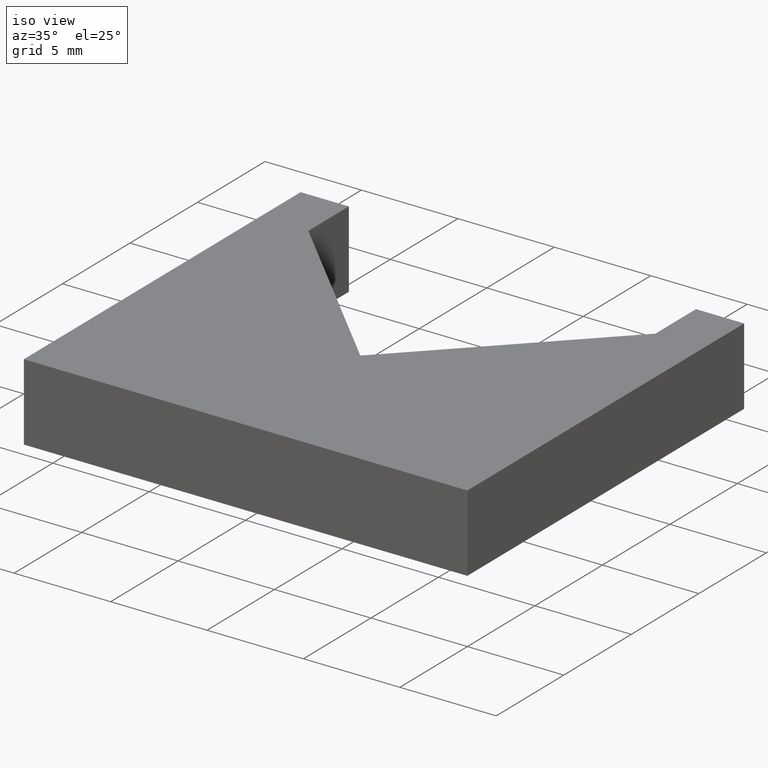
[diagram: clean part render]
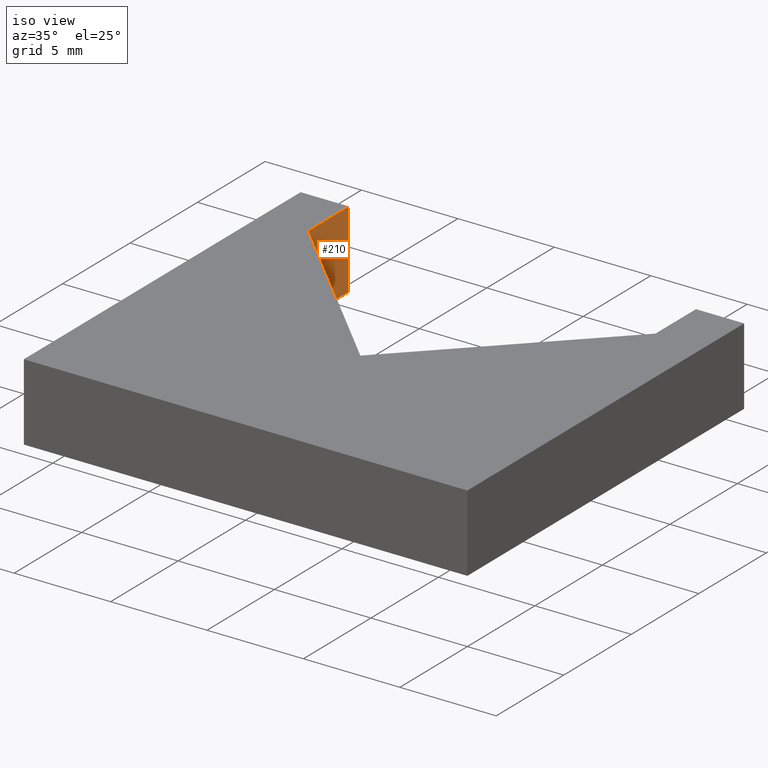
[diagram: same view with one face highlighted and labeled with its STEP entity id]
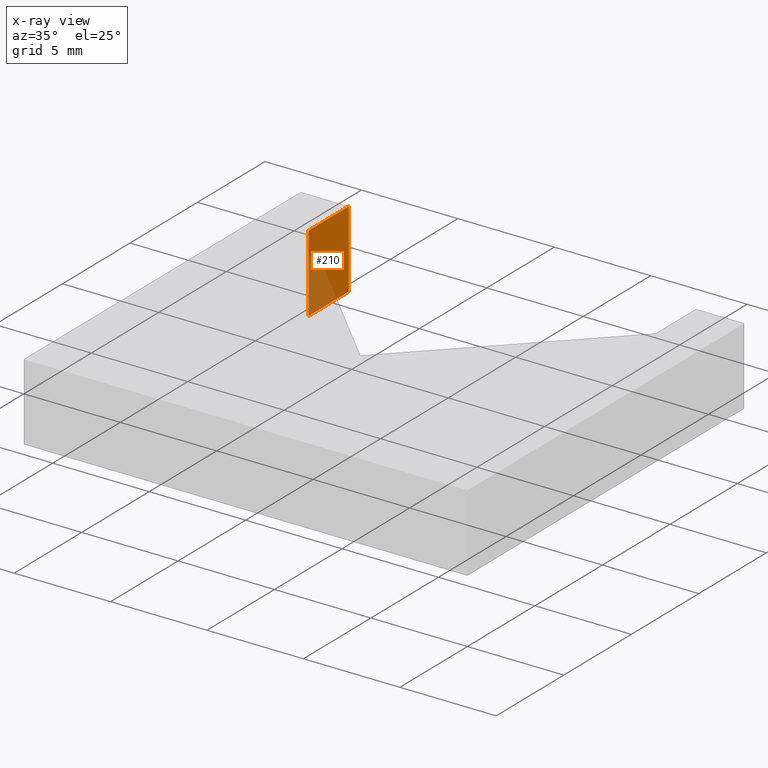
[diagram: x-ray of the same camera — body ghosted, the highlighted face saturated]
A machine part, iso view. The second image highlights one B-rep face of the part: STEP entity #210.
The next image is the same camera in x-ray: the body ghosted, the highlighted face saturated — about 32% of this face is hidden behind the body in this view.
In plain terms, the highlighted planar face has unit normal (1, 0, 0).
Its self-contained STEP definition (entity closure, byte-faithful):
#24=FACE_OUTER_BOUND('',#35,.T.);
#35=EDGE_LOOP('',(#174,#175,#176,#177));
#38=LINE('',#302,#65);
#61=LINE('',#347,#88);
#62=LINE('',#350,#89);
#63=LINE('',#351,#90);
#65=VECTOR('',#251,10.);
#88=VECTOR('',#288,10.);
#89=VECTOR('',#291,10.);
#90=VECTOR('',#292,10.);
#92=VERTEX_POINT('',#300);
#93=VERTEX_POINT('',#301);
#108=VERTEX_POINT('',#345);
#109=VERTEX_POINT('',#349);
#110=EDGE_CURVE('',#92,#93,#38,.T.);
#133=EDGE_CURVE('',#93,#108,#61,.T.);
#134=EDGE_CURVE('',#108,#109,#62,.T.);
#135=EDGE_CURVE('',#92,#109,#63,.T.);
#174=ORIENTED_EDGE('',*,*,#134,.T.);
#175=ORIENTED_EDGE('',*,*,#135,.F.);
#176=ORIENTED_EDGE('',*,*,#110,.T.);
#177=ORIENTED_EDGE('',*,*,#133,.T.);
#199=PLANE('',#244);
#210=ADVANCED_FACE('',(#24),#199,.T.);
#244=AXIS2_PLACEMENT_3D('',#348,#289,#290);
#251=DIRECTION('',(0.,1.,0.));
#288=DIRECTION('',(0.,0.,1.));
#289=DIRECTION('center_axis',(1.,0.,0.));
#290=DIRECTION('ref_axis',(0.,0.,-1.));
#291=DIRECTION('',(0.,-1.,0.));
#292=DIRECTION('',(0.,0.,1.));
#300=CARTESIAN_POINT('',(-9.,17.5,-2.));
#301=CARTESIAN_POINT('',(-9.,20.5,-2.));
#302=CARTESIAN_POINT('',(-9.,17.5,-2.));
#345=CARTESIAN_POINT('',(-9.,20.5,2.));
#347=CARTESIAN_POINT('',(-9.,20.5,0.));
#348=CARTESIAN_POINT('Origin',(-9.,20.5,0.));
#349=CARTESIAN_POINT('',(-9.,17.5,2.));
#350=CARTESIAN_POINT('',(-9.,17.5,2.));
#351=CARTESIAN_POINT('',(-9.,17.5,0.));